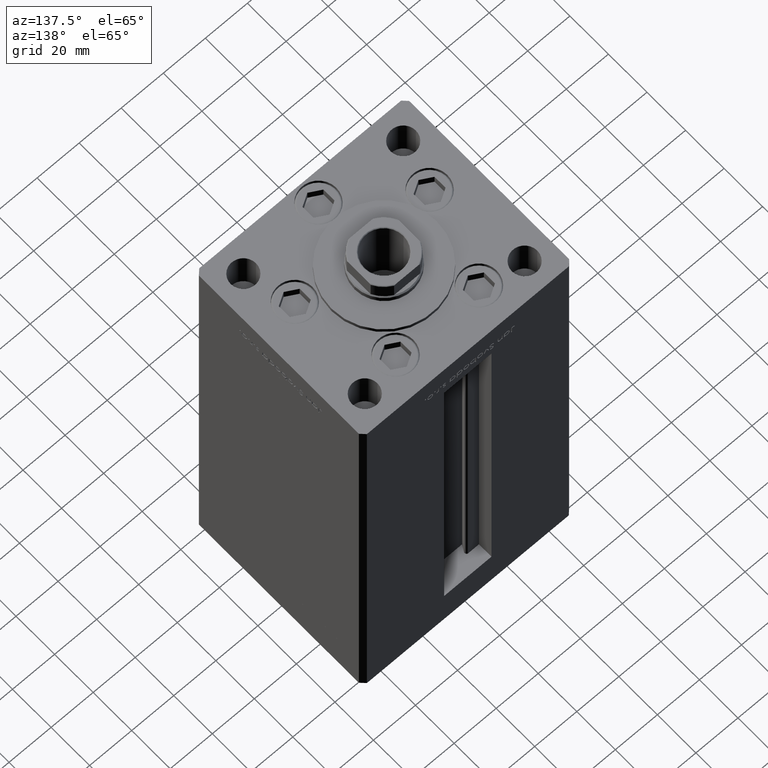
[diagram: clean part render]
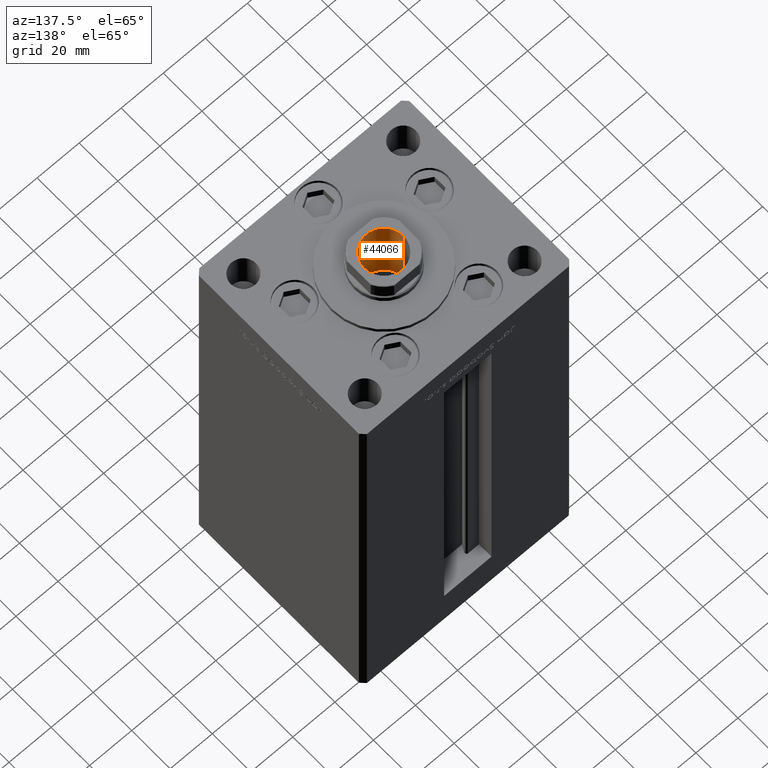
[diagram: same view with one face highlighted and labeled with its STEP entity id]
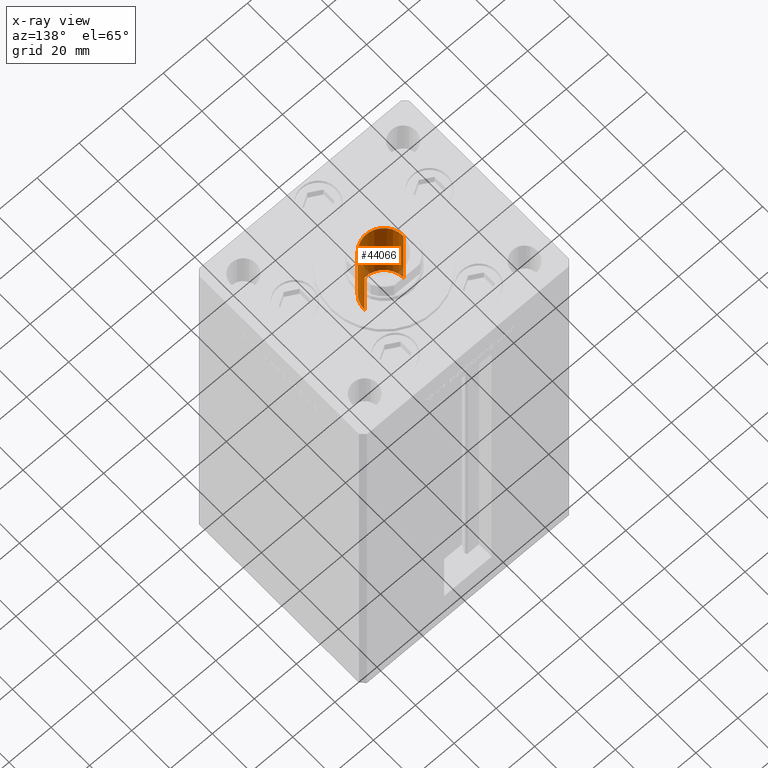
[diagram: x-ray of the same camera — body ghosted, the highlighted face saturated]
A machine part, auxiliary view. The second image highlights one B-rep face of the part: STEP entity #44066.
The next image is the same camera in x-ray: the body ghosted, the highlighted face saturated — about 3% of this face is hidden behind the body in this view.
In plain terms, the highlighted cylindrical surface (edge-blend (fillet) strip) has radius 9.25 mm, axis along (0, 0, 1).
Its self-contained STEP definition (entity closure, byte-faithful):
#669 = VERTEX_POINT ( 'NONE', #24945 ) ;
#3305 = CARTESIAN_POINT ( 'NONE',  ( -9.249999999999996447, 1.132798289211301304E-15, 185.2500000000000000 ) ) ;
#3456 = DIRECTION ( 'NONE',  ( 1.000000000000000000, 0.000000000000000000, 0.000000000000000000 ) ) ;
#4353 = ORIENTED_EDGE ( 'NONE', *, *, #39965, .F. ) ;
#5990 = ORIENTED_EDGE ( 'NONE', *, *, #23682, .F. ) ;
#7651 = DIRECTION ( 'NONE',  ( -0.000000000000000000, -0.000000000000000000, 1.000000000000000000 ) ) ;
#8500 = CIRCLE ( 'NONE', #23631, 9.249999999999994671 ) ;
#8677 = DIRECTION ( 'NONE',  ( 1.000000000000000000, 0.000000000000000000, 0.000000000000000000 ) ) ;
#9216 = CIRCLE ( 'NONE', #50513, 9.249999999999996447 ) ;
#11914 = DIRECTION ( 'NONE',  ( 0.000000000000000000, 0.000000000000000000, 1.000000000000000000 ) ) ;
#14379 = ORIENTED_EDGE ( 'NONE', *, *, #20874, .T. ) ;
#15203 = LINE ( 'NONE', #3305, #42511 ) ;
#19257 = CARTESIAN_POINT ( 'NONE',  ( -9.249999999999994671, 1.132798289211300909E-15, 150.2500000000000000 ) ) ;
#19671 = DIRECTION ( 'NONE',  ( -0.000000000000000000, -0.000000000000000000, 1.000000000000000000 ) ) ;
#20581 = VECTOR ( 'NONE', #41907, 1000.000000000000000 ) ;
#20874 = EDGE_CURVE ( 'NONE', #34698, #36659, #9216, .T. ) ;
#21335 = CARTESIAN_POINT ( 'NONE',  ( 0.000000000000000000, 0.000000000000000000, 185.2500000000000000 ) ) ;
#22353 = CARTESIAN_POINT ( 'NONE',  ( 9.249999999999996447, 0.000000000000000000, 185.2500000000000000 ) ) ;
#22586 = EDGE_LOOP ( 'NONE', ( #5990, #33419, #14379, #4353 ) ) ;
#23631 = AXIS2_PLACEMENT_3D ( 'NONE', #36391, #7651, #8677 ) ;
#23682 = EDGE_CURVE ( 'NONE', #31615, #669, #8500, .T. ) ;
#24529 = CARTESIAN_POINT ( 'NONE',  ( -9.249999999999996447, 1.132798289211301304E-15, 184.9499999999999602 ) ) ;
#24945 = CARTESIAN_POINT ( 'NONE',  ( 9.249999999999994671, 0.000000000000000000, 150.2500000000000000 ) ) ;
#26314 = LINE ( 'NONE', #22353, #20581 ) ;
#28983 = FACE_OUTER_BOUND ( 'NONE', #22586, .T. ) ;
#31615 = VERTEX_POINT ( 'NONE', #19257 ) ;
#33419 = ORIENTED_EDGE ( 'NONE', *, *, #45618, .T. ) ;
#34698 = VERTEX_POINT ( 'NONE', #24529 ) ;
#35311 = CARTESIAN_POINT ( 'NONE',  ( 9.249999999999996447, 0.000000000000000000, 184.9499999999999602 ) ) ;
#36391 = CARTESIAN_POINT ( 'NONE',  ( 0.000000000000000000, 0.000000000000000000, 150.2500000000000000 ) ) ;
#36583 = AXIS2_PLACEMENT_3D ( 'NONE', #21335, #49843, #37440 ) ;
#36659 = VERTEX_POINT ( 'NONE', #35311 ) ;
#37440 = DIRECTION ( 'NONE',  ( 1.000000000000000000, 0.000000000000000000, 0.000000000000000000 ) ) ;
#39965 = EDGE_CURVE ( 'NONE', #669, #36659, #26314, .T. ) ;
#41907 = DIRECTION ( 'NONE',  ( -0.000000000000000000, -0.000000000000000000, 1.000000000000000000 ) ) ;
#42511 = VECTOR ( 'NONE', #19671, 1000.000000000000000 ) ;
#44066 = ADVANCED_FACE ( 'NONE', ( #28983 ), #49317, .F. ) ;
#45618 = EDGE_CURVE ( 'NONE', #31615, #34698, #15203, .T. ) ;
#47788 = CARTESIAN_POINT ( 'NONE',  ( 0.000000000000000000, 0.000000000000000000, 184.9499999999999602 ) ) ;
#49317 = CYLINDRICAL_SURFACE ( 'NONE', #36583, 9.249999999999996447 ) ;
#49843 = DIRECTION ( 'NONE',  ( -0.000000000000000000, -0.000000000000000000, 1.000000000000000000 ) ) ;
#50513 = AXIS2_PLACEMENT_3D ( 'NONE', #47788, #11914, #3456 ) ;